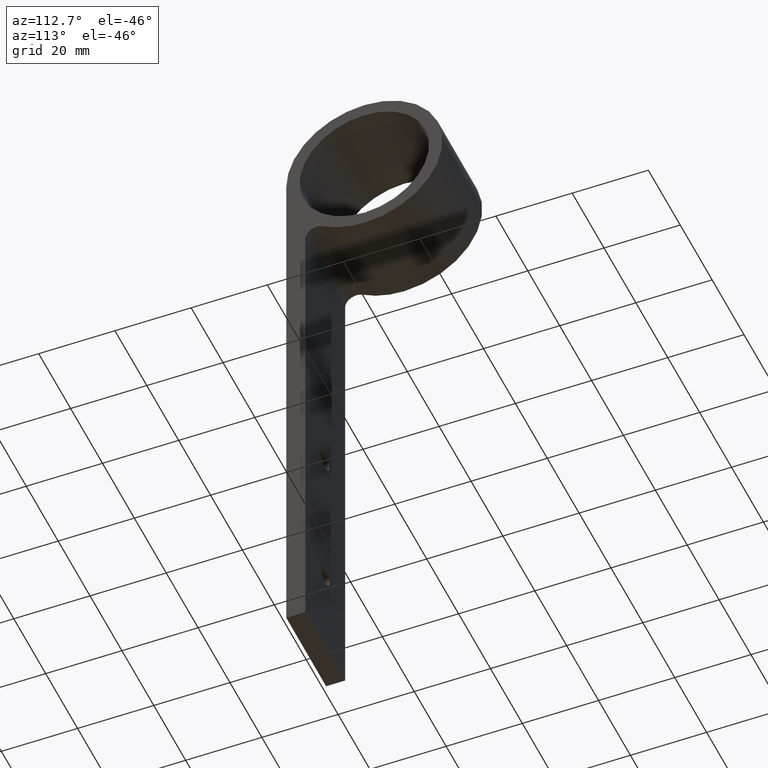
[diagram: clean part render]
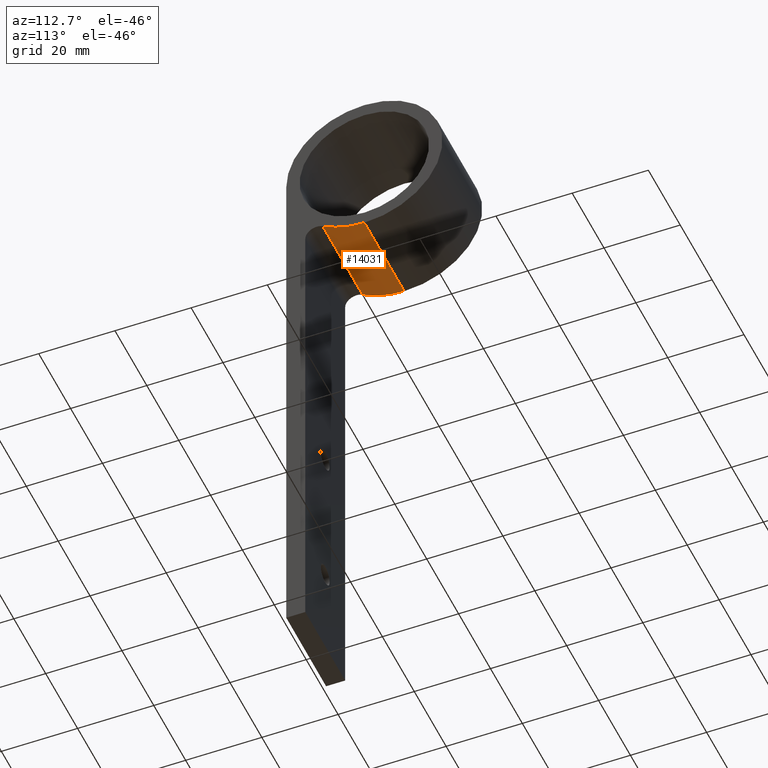
[diagram: same view with one face highlighted and labeled with its STEP entity id]
A machine part, auxiliary view. The second image highlights one B-rep face of the part: STEP entity #14031.
In plain terms, the highlighted cylindrical surface (partial cylindrical patch) has radius 20.5 mm, axis along (-1, -0, -0).
Its self-contained STEP definition (entity closure, byte-faithful):
#662 = DIRECTION ( 'NONE',  ( 0.0000000000000000000, 0.0000000000000000000, 1.000000000000000000 ) ) ;
#744 = VERTEX_POINT ( 'NONE', #13972 ) ;
#1019 = ORIENTED_EDGE ( 'NONE', *, *, #5107, .T. ) ;
#2304 = CARTESIAN_POINT ( 'NONE',  ( 12.50000000000000000, 20.50000000000000400, -20.50000000000000000 ) ) ;
#2516 = CARTESIAN_POINT ( 'NONE',  ( 12.50000000000000000, 20.50000000000000000, 0.0000000000000000000 ) ) ;
#3225 = AXIS2_PLACEMENT_3D ( 'NONE', #2516, #9209, #662 ) ;
#3992 = CARTESIAN_POINT ( 'NONE',  ( -12.50000000000000000, 9.595744680851046500, -17.35935528568995400 ) ) ;
#4285 = DIRECTION ( 'NONE',  ( -1.000000000000000000, -0.0000000000000000000, -0.0000000000000000000 ) ) ;
#4473 = CARTESIAN_POINT ( 'NONE',  ( 12.50000000000000000, 20.50000000000000000, 0.0000000000000000000 ) ) ;
#4694 = EDGE_LOOP ( 'NONE', ( #8519, #6241, #8917, #1019 ) ) ;
#4697 = EDGE_CURVE ( 'NONE', #744, #12041, #5233, .T. ) ;
#4735 = CARTESIAN_POINT ( 'NONE',  ( -12.50000000000000000, 20.50000000000000000, 0.0000000000000000000 ) ) ;
#4836 = CARTESIAN_POINT ( 'NONE',  ( -12.50000000000000000, 20.50000000000000400, -20.50000000000000000 ) ) ;
#5107 = EDGE_CURVE ( 'NONE', #12041, #8835, #6624, .T. ) ;
#5233 = LINE ( 'NONE', #13998, #6821 ) ;
#5403 = VERTEX_POINT ( 'NONE', #2304 ) ;
#5588 = DIRECTION ( 'NONE',  ( 1.000000000000000000, 0.0000000000000000000, 0.0000000000000000000 ) ) ;
#5935 = AXIS2_PLACEMENT_3D ( 'NONE', #4473, #5588, #8908 ) ;
#6241 = ORIENTED_EDGE ( 'NONE', *, *, #8148, .F. ) ;
#6581 = AXIS2_PLACEMENT_3D ( 'NONE', #4735, #11595, #10445 ) ;
#6624 = CIRCLE ( 'NONE', #6581, 20.50000000000000000 ) ;
#6821 = VECTOR ( 'NONE', #12004, 1000.000000000000000 ) ;
#8148 = EDGE_CURVE ( 'NONE', #744, #5403, #13704, .T. ) ;
#8414 = CYLINDRICAL_SURFACE ( 'NONE', #3225, 20.50000000000000000 ) ;
#8519 = ORIENTED_EDGE ( 'NONE', *, *, #11402, .F. ) ;
#8835 = VERTEX_POINT ( 'NONE', #4836 ) ;
#8908 = DIRECTION ( 'NONE',  ( 0.0000000000000000000, 0.0000000000000000000, -1.000000000000000000 ) ) ;
#8917 = ORIENTED_EDGE ( 'NONE', *, *, #4697, .T. ) ;
#9209 = DIRECTION ( 'NONE',  ( -1.000000000000000000, -0.0000000000000000000, -0.0000000000000000000 ) ) ;
#9321 = LINE ( 'NONE', #11934, #10563 ) ;
#10445 = DIRECTION ( 'NONE',  ( 0.0000000000000000000, 0.0000000000000000000, -1.000000000000000000 ) ) ;
#10563 = VECTOR ( 'NONE', #4285, 1000.000000000000000 ) ;
#11402 = EDGE_CURVE ( 'NONE', #5403, #8835, #9321, .T. ) ;
#11595 = DIRECTION ( 'NONE',  ( 1.000000000000000000, 0.0000000000000000000, 0.0000000000000000000 ) ) ;
#11934 = CARTESIAN_POINT ( 'NONE',  ( 12.50000000000000000, 20.50000000000000400, -20.50000000000000000 ) ) ;
#12004 = DIRECTION ( 'NONE',  ( -1.000000000000000000, -0.0000000000000000000, -0.0000000000000000000 ) ) ;
#12041 = VERTEX_POINT ( 'NONE', #3992 ) ;
#13478 = FACE_OUTER_BOUND ( 'NONE', #4694, .T. ) ;
#13704 = CIRCLE ( 'NONE', #5935, 20.50000000000000000 ) ;
#13972 = CARTESIAN_POINT ( 'NONE',  ( 12.50000000000000000, 9.595744680851046500, -17.35935528568995400 ) ) ;
#13998 = CARTESIAN_POINT ( 'NONE',  ( 12.50000000000000000, 9.595744680851044700, -17.35935528568995800 ) ) ;
#14031 = ADVANCED_FACE ( 'NONE', ( #13478 ), #8414, .T. ) ;